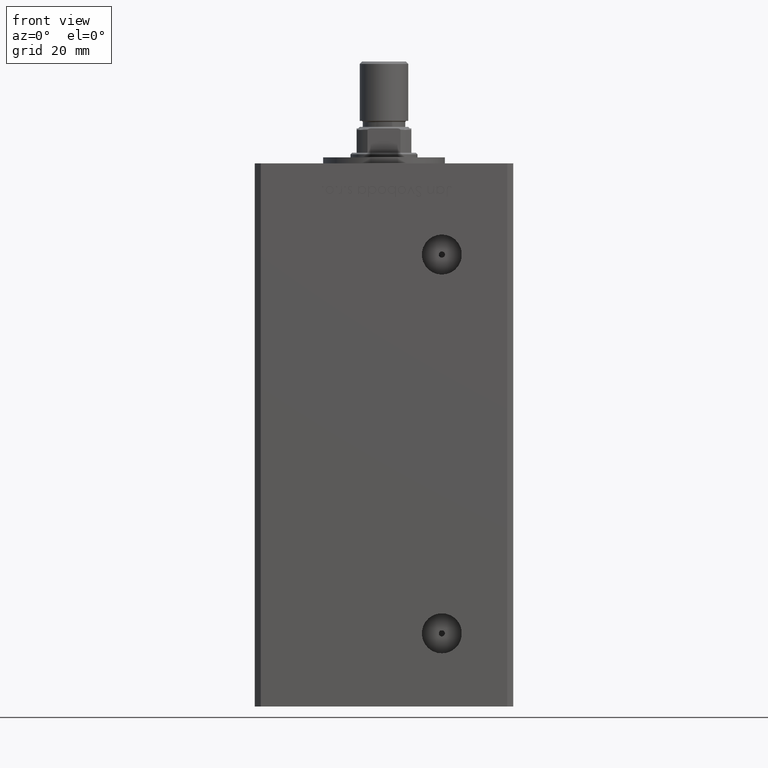
[diagram: clean part render]
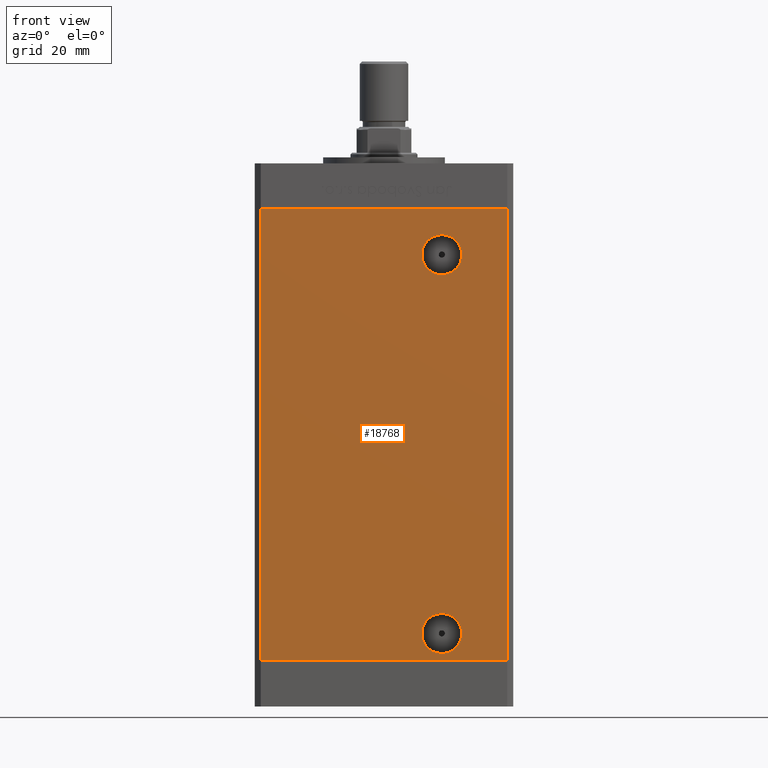
[diagram: same view with one face highlighted and labeled with its STEP entity id]
A machine part, front view. The second image highlights one B-rep face of the part: STEP entity #18768.
In plain terms, the highlighted planar face has unit normal (0, 1, 0).
Its self-contained STEP definition (entity closure, byte-faithful):
#1089 = ORIENTED_EDGE ( 'NONE', *, *, #5709, .T. ) ;
#1251 = CARTESIAN_POINT ( 'NONE',  ( 18.99999999999997513, -37.50000000000000711, 133.5000000000000000 ) ) ;
#1455 = AXIS2_PLACEMENT_3D ( 'NONE', #41429, #45426, #29968 ) ;
#1716 = CIRCLE ( 'NONE', #15348, 6.579999999999998295 ) ;
#2831 = LINE ( 'NONE', #30802, #21347 ) ;
#3542 = CARTESIAN_POINT ( 'NONE',  ( 40.49999999999998579, -37.50000000000000711, 148.5000000000000000 ) ) ;
#4743 = CARTESIAN_POINT ( 'NONE',  ( 18.99999999999998934, -37.50000000000000711, 2.420000000000009699 ) ) ;
#5709 = EDGE_CURVE ( 'NONE', #46349, #19085, #30072, .T. ) ;
#6297 = LINE ( 'NONE', #18281, #43306 ) ;
#9001 = EDGE_CURVE ( 'NONE', #12377, #35400, #24393, .T. ) ;
#9282 = EDGE_CURVE ( 'NONE', #41693, #42826, #34651, .T. ) ;
#9286 = EDGE_LOOP ( 'NONE', ( #30487, #38711 ) ) ;
#9759 = DIRECTION ( 'NONE',  ( 0.000000000000000000, 0.000000000000000000, -1.000000000000000000 ) ) ;
#10473 = DIRECTION ( 'NONE',  ( 0.000000000000000000, -0.000000000000000000, 1.000000000000000000 ) ) ;
#12139 = ORIENTED_EDGE ( 'NONE', *, *, #45670, .T. ) ;
#12193 = EDGE_LOOP ( 'NONE', ( #30730, #12139 ) ) ;
#12377 = VERTEX_POINT ( 'NONE', #20044 ) ;
#12569 = CARTESIAN_POINT ( 'NONE',  ( -40.49999999999998579, -37.50000000000000711, 0.000000000000000000 ) ) ;
#12691 = CARTESIAN_POINT ( 'NONE',  ( 40.49999999999998579, -37.50000000000000711, 0.000000000000000000 ) ) ;
#12882 = ORIENTED_EDGE ( 'NONE', *, *, #35828, .T. ) ;
#13494 = DIRECTION ( 'NONE',  ( -0.000000000000000000, 1.000000000000000000, -0.000000000000000000 ) ) ;
#14081 = DIRECTION ( 'NONE',  ( -0.000000000000000000, -0.000000000000000000, -1.000000000000000000 ) ) ;
#14471 = FACE_BOUND ( 'NONE', #12193, .T. ) ;
#14611 = EDGE_CURVE ( 'NONE', #37249, #42175, #6297, .T. ) ;
#14857 = AXIS2_PLACEMENT_3D ( 'NONE', #1251, #13494, #9759 ) ;
#15348 = AXIS2_PLACEMENT_3D ( 'NONE', #25796, #46067, #33289 ) ;
#15496 = CARTESIAN_POINT ( 'NONE',  ( -40.49999999999998579, -37.50000000000000711, 0.000000000000000000 ) ) ;
#15541 = CARTESIAN_POINT ( 'NONE',  ( 18.99999999999998934, -37.50000000000000711, 9.000000000000007105 ) ) ;
#18281 = CARTESIAN_POINT ( 'NONE',  ( 40.49999999999998579, -37.50000000000000711, 148.5000000000000000 ) ) ;
#18549 = EDGE_CURVE ( 'NONE', #42826, #41693, #1716, .T. ) ;
#18768 = ADVANCED_FACE ( 'NONE', ( #22969, #26695, #14471 ), #26957, .F. ) ;
#19085 = VERTEX_POINT ( 'NONE', #12569 ) ;
#19810 = DIRECTION ( 'NONE',  ( 0.000000000000000000, 0.000000000000000000, -1.000000000000000000 ) ) ;
#20044 = CARTESIAN_POINT ( 'NONE',  ( 18.99999999999997513, -37.50000000000000711, 126.9200000000000017 ) ) ;
#21005 = AXIS2_PLACEMENT_3D ( 'NONE', #15541, #48058, #19810 ) ;
#21347 = VECTOR ( 'NONE', #22793, 1000.000000000000000 ) ;
#22071 = EDGE_CURVE ( 'NONE', #46349, #37249, #2831, .T. ) ;
#22793 = DIRECTION ( 'NONE',  ( 1.000000000000000000, 0.000000000000000000, 0.000000000000000000 ) ) ;
#22969 = FACE_BOUND ( 'NONE', #9286, .T. ) ;
#24393 = CIRCLE ( 'NONE', #1455, 6.580000000000002736 ) ;
#25796 = CARTESIAN_POINT ( 'NONE',  ( 18.99999999999998934, -37.50000000000000711, 9.000000000000007105 ) ) ;
#26176 = DIRECTION ( 'NONE',  ( 0.000000000000000000, 1.000000000000000000, 0.000000000000000000 ) ) ;
#26695 = FACE_OUTER_BOUND ( 'NONE', #48699, .T. ) ;
#26957 = PLANE ( 'NONE',  #40028 ) ;
#28698 = VECTOR ( 'NONE', #14081, 1000.000000000000000 ) ;
#29968 = DIRECTION ( 'NONE',  ( 0.000000000000000000, 0.000000000000000000, -1.000000000000000000 ) ) ;
#30072 = LINE ( 'NONE', #41802, #28698 ) ;
#30487 = ORIENTED_EDGE ( 'NONE', *, *, #18549, .F. ) ;
#30730 = ORIENTED_EDGE ( 'NONE', *, *, #9001, .T. ) ;
#30802 = CARTESIAN_POINT ( 'NONE',  ( -40.49999999999998579, -37.50000000000000711, 148.5000000000000000 ) ) ;
#33289 = DIRECTION ( 'NONE',  ( 0.000000000000000000, 0.000000000000000000, -1.000000000000000000 ) ) ;
#33851 = ORIENTED_EDGE ( 'NONE', *, *, #14611, .F. ) ;
#34651 = CIRCLE ( 'NONE', #21005, 6.579999999999998295 ) ;
#35400 = VERTEX_POINT ( 'NONE', #50508 ) ;
#35828 = EDGE_CURVE ( 'NONE', #19085, #42175, #45059, .T. ) ;
#37249 = VERTEX_POINT ( 'NONE', #3542 ) ;
#37672 = VECTOR ( 'NONE', #44276, 1000.000000000000000 ) ;
#37844 = CARTESIAN_POINT ( 'NONE',  ( 18.99999999999998934, -37.50000000000000711, 15.58000000000000718 ) ) ;
#38456 = CARTESIAN_POINT ( 'NONE',  ( -40.49999999999998579, -37.50000000000000711, 148.5000000000000000 ) ) ;
#38711 = ORIENTED_EDGE ( 'NONE', *, *, #9282, .F. ) ;
#40028 = AXIS2_PLACEMENT_3D ( 'NONE', #38456, #26176, #10473 ) ;
#41429 = CARTESIAN_POINT ( 'NONE',  ( 18.99999999999997513, -37.50000000000000711, 133.5000000000000000 ) ) ;
#41693 = VERTEX_POINT ( 'NONE', #37844 ) ;
#41802 = CARTESIAN_POINT ( 'NONE',  ( -40.49999999999998579, -37.50000000000000711, 148.5000000000000000 ) ) ;
#42175 = VERTEX_POINT ( 'NONE', #12691 ) ;
#42826 = VERTEX_POINT ( 'NONE', #4743 ) ;
#43306 = VECTOR ( 'NONE', #46523, 1000.000000000000000 ) ;
#44276 = DIRECTION ( 'NONE',  ( 1.000000000000000000, 0.000000000000000000, 0.000000000000000000 ) ) ;
#45059 = LINE ( 'NONE', #15496, #37672 ) ;
#45426 = DIRECTION ( 'NONE',  ( -0.000000000000000000, 1.000000000000000000, -0.000000000000000000 ) ) ;
#45670 = EDGE_CURVE ( 'NONE', #35400, #12377, #48020, .T. ) ;
#46067 = DIRECTION ( 'NONE',  ( 0.000000000000000000, -1.000000000000000000, 0.000000000000000000 ) ) ;
#46349 = VERTEX_POINT ( 'NONE', #51119 ) ;
#46523 = DIRECTION ( 'NONE',  ( -0.000000000000000000, -0.000000000000000000, -1.000000000000000000 ) ) ;
#48020 = CIRCLE ( 'NONE', #14857, 6.580000000000002736 ) ;
#48058 = DIRECTION ( 'NONE',  ( 0.000000000000000000, -1.000000000000000000, 0.000000000000000000 ) ) ;
#48699 = EDGE_LOOP ( 'NONE', ( #12882, #33851, #51083, #1089 ) ) ;
#50508 = CARTESIAN_POINT ( 'NONE',  ( 18.99999999999997513, -37.50000000000000711, 140.0800000000000125 ) ) ;
#51083 = ORIENTED_EDGE ( 'NONE', *, *, #22071, .F. ) ;
#51119 = CARTESIAN_POINT ( 'NONE',  ( -40.49999999999998579, -37.50000000000000711, 148.5000000000000000 ) ) ;